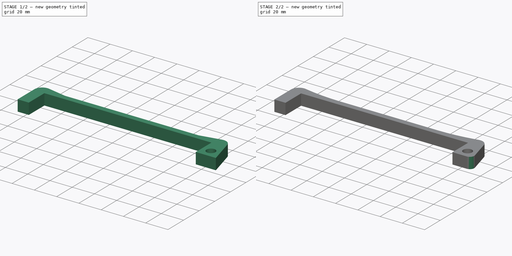
[diagram: build sequence overview — one tinted view per stage of 2, left to right]
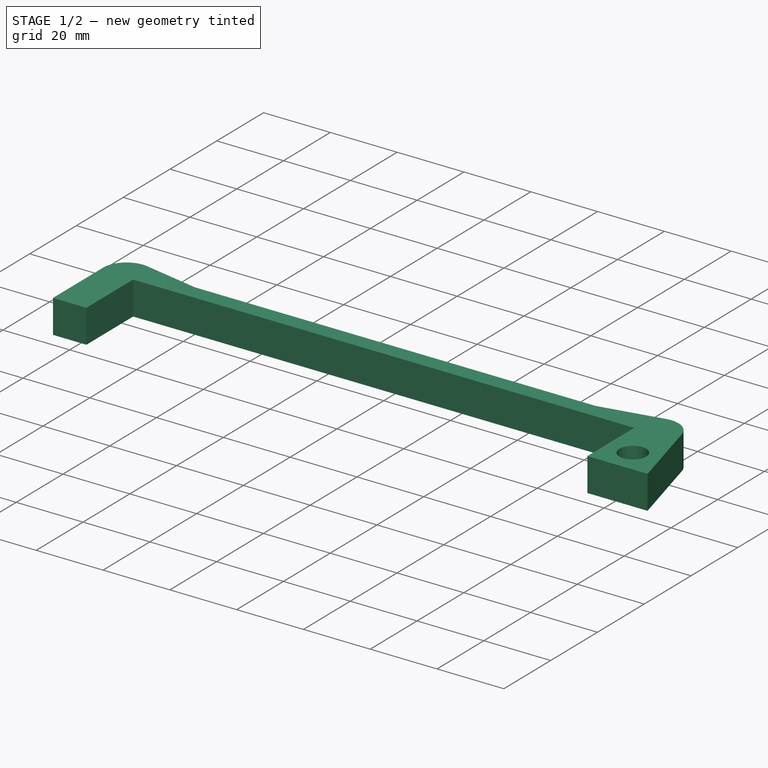
[diagram: stage 1 of 2 — iso view after this stage's code; geometry added in this stage tinted green]
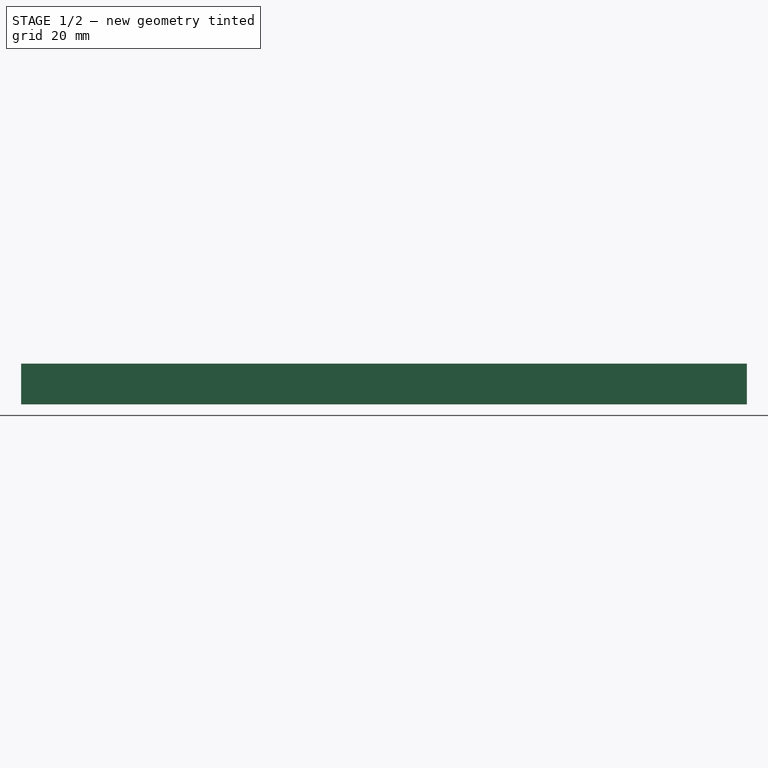
[diagram: stage 1 of 2 — front view after this stage's code; geometry added in this stage tinted green]
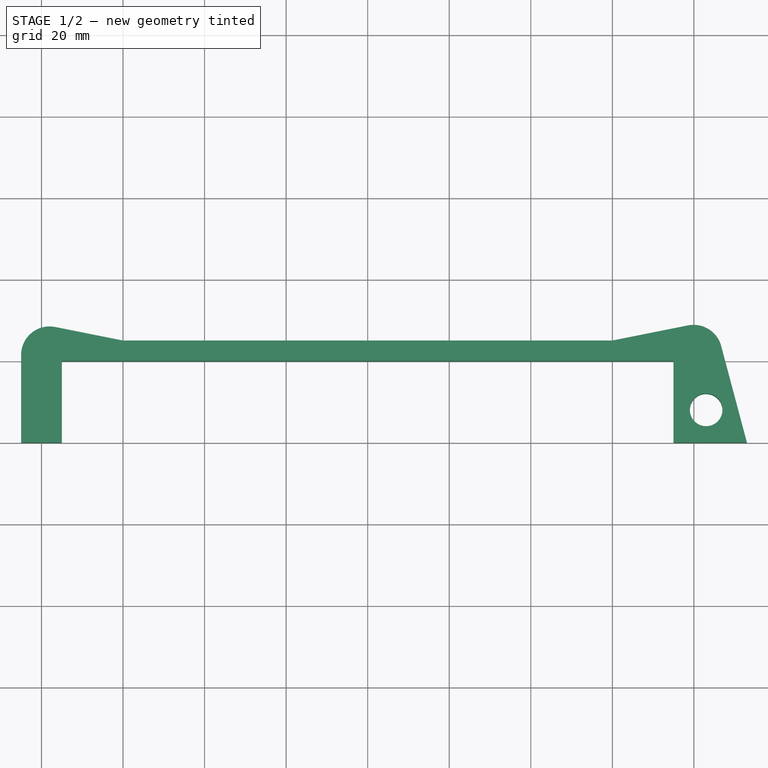
[diagram: stage 1 of 2 — top view after this stage's code; geometry added in this stage tinted green]
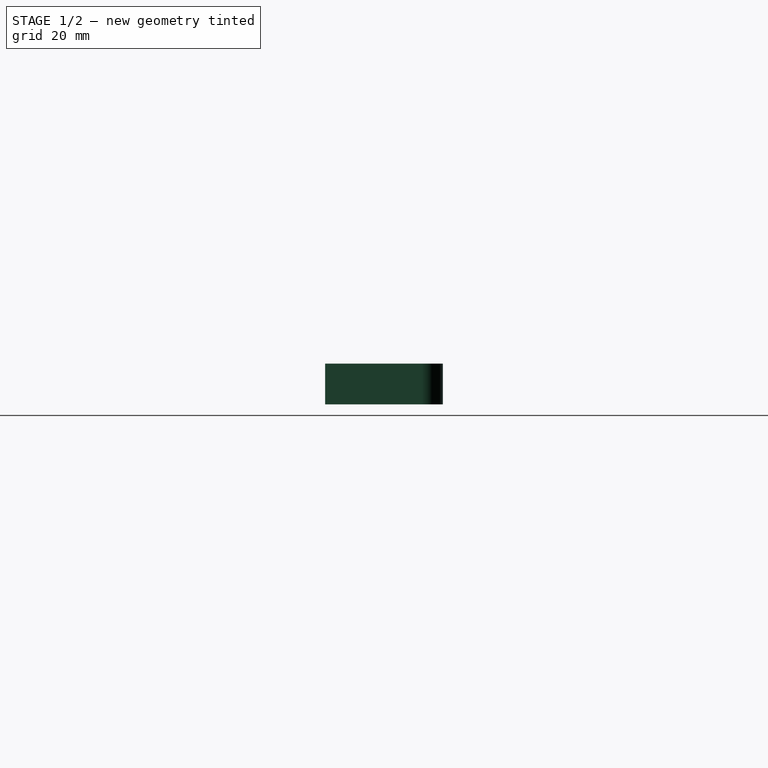
[diagram: stage 1 of 2 — right view after this stage's code; geometry added in this stage tinted green]
FCSTD DOCUMENT  (FreeCAD 0.19R24291 (Git))
Label: door opener wall bracket
License: All rights reserved
LicenseURL: http://en.wikipedia.org/wiki/All_rights_reserved
objects: PartDesign::Fillet×3, Sketcher::SketchObject×1, PartDesign::Pad×1, PartDesign::Body×1
note: 10 computed .brp shape members not serialized (recipe doc carries the construction recipe); baked Part::Feature solids carry a one-line shape summary decoded from their .brp

FEATURE [Sketcher::SketchObject] Sketch
  FullyConstrained = true
  MapMode = 5
  Support = -> [XY_Plane]
  sketch-geometry (11):
    g0: LineSegment StartX=-75 StartY=-20 StartZ=0 EndX=-75 EndY=0 EndZ=0
    g1: LineSegment StartX=-75 StartY=0 StartZ=0 EndX=75 EndY=0 EndZ=0
    g2: LineSegment StartX=75 StartY=0 StartZ=0 EndX=75 EndY=-20 EndZ=0
    g3: LineSegment StartX=75 StartY=-20 StartZ=0 EndX=93 EndY=-20 EndZ=0
    g4: LineSegment StartX=93 StartY=-20 StartZ=0 EndX=85 EndY=10 EndZ=0
    g5: LineSegment StartX=-85 StartY=10 StartZ=0 EndX=-85 EndY=-20 EndZ=0
    g6: LineSegment StartX=-85 StartY=-20 StartZ=0 EndX=-75 EndY=-20 EndZ=0
    g7: Circle CenterX=83 CenterY=-12 CenterZ=0 NormalX=0 NormalY=0 NormalZ=1 AngleXU=0 Radius=4
    g8: LineSegment StartX=-85 StartY=10 StartZ=0 EndX=-60 EndY=5 EndZ=0
    g9: LineSegment StartX=-60 StartY=5 StartZ=0 EndX=60 EndY=5 EndZ=0
    g10: LineSegment StartX=60 StartY=5 StartZ=0 EndX=85 EndY=10 EndZ=0
  constraints (31):
    c: PointOnObject(g0,g-1)
    c: Vertical(g0)
    c: Coincident(g0,g1)
    c: Coincident(g1,g2)
    c: Vertical(g2)
    c: Coincident(g2,g3)
    c: Horizontal(g3)
    c: Coincident(g3,g4)
    c: Vertical(g5)
    c: Coincident(g5,g6)
    c: Coincident(g6,g0)
    c: Horizontal(g6)
    c: Symmetric(g0,g1,g-1)
    c: DistanceX(g5,g0) = 10
    c: DistanceY(g0,g5) = 10
    c: DistanceY(g0,g0) = 20
    c: DistanceY(g2,g2) = 20
    c: DistanceX(g1,g1) = 150
    c: Diameter(g7) = 8
    c: DistanceY(g2,g7) = 8
    c: Coincident(g5,g8)
    c: Coincident(g8,g9)
    c: Coincident(g9,g10)
    c: Coincident(g10,g4)
    c: Symmetric(g8,g9,g-2)
    c: DistanceX(g9,g9) = 120
    c: DistanceY(g0,g8) = 5
    c: DistanceY(g1,g4) = 10
    c: DistanceX(g2,g7) = 8
    c: DistanceX(g3,g3) = 18
    c: DistanceX(g1,g4) = 10
FEATURE [PartDesign::Pad] Pad
  Direction = (1,1,1)
  Length = 10
  Length2 = 100
  Profile = -> Sketch
  Type = 0
FEATURE [PartDesign::Fillet] Fillet
  Base = -> Pad [Edge20,Edge1]
  BaseFeature = -> Pad
  Radius = 7
  SupportTransform = false
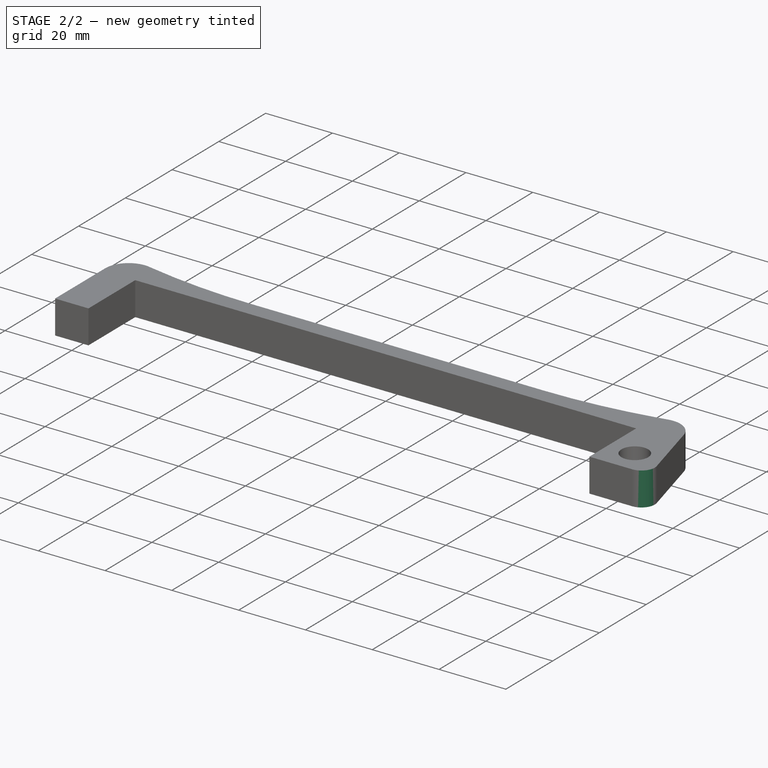
[diagram: stage 2 of 2 — iso view after this stage's code; geometry added in this stage tinted green]
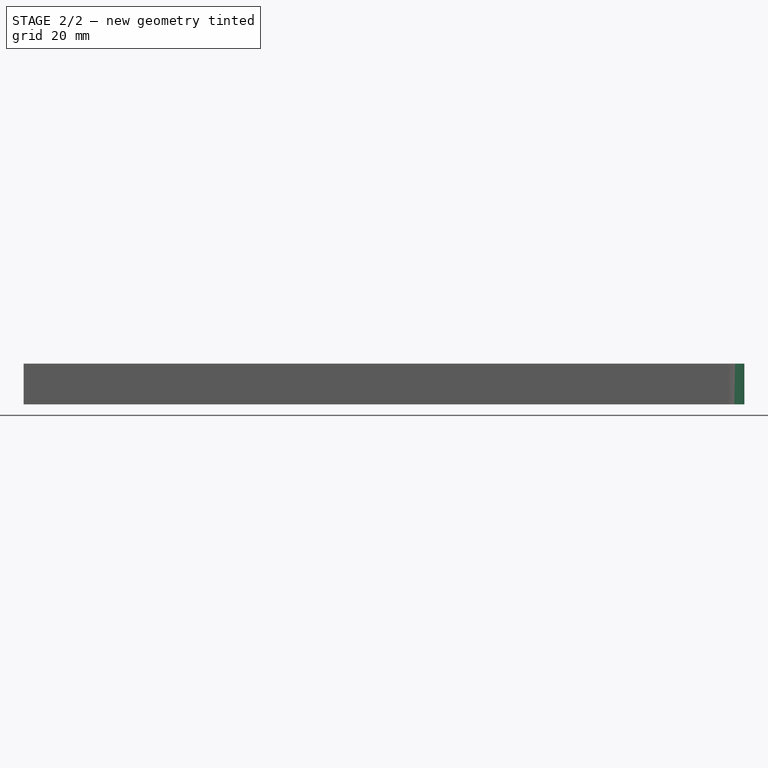
[diagram: stage 2 of 2 — front view after this stage's code; geometry added in this stage tinted green]
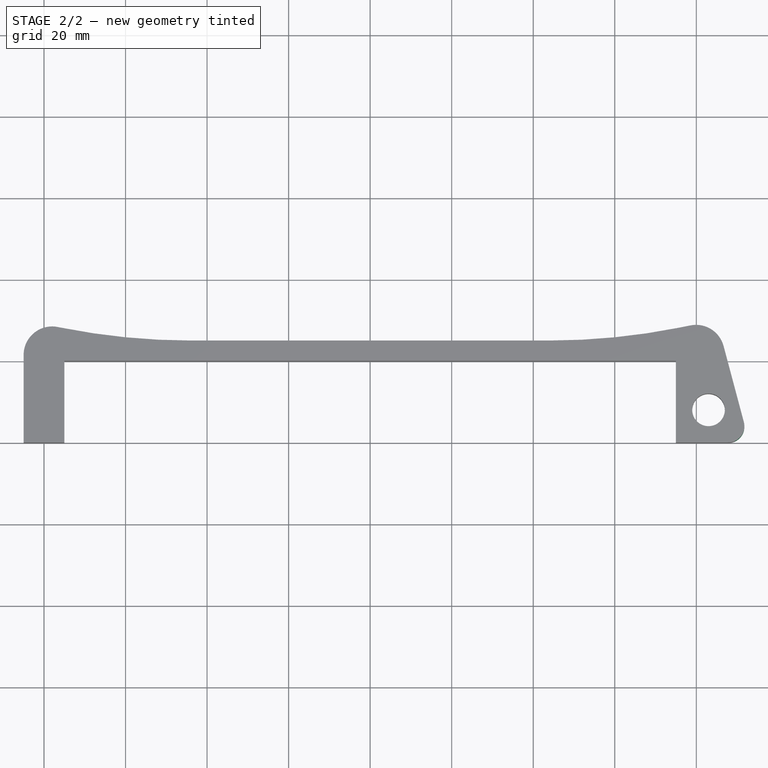
[diagram: stage 2 of 2 — top view after this stage's code; geometry added in this stage tinted green]
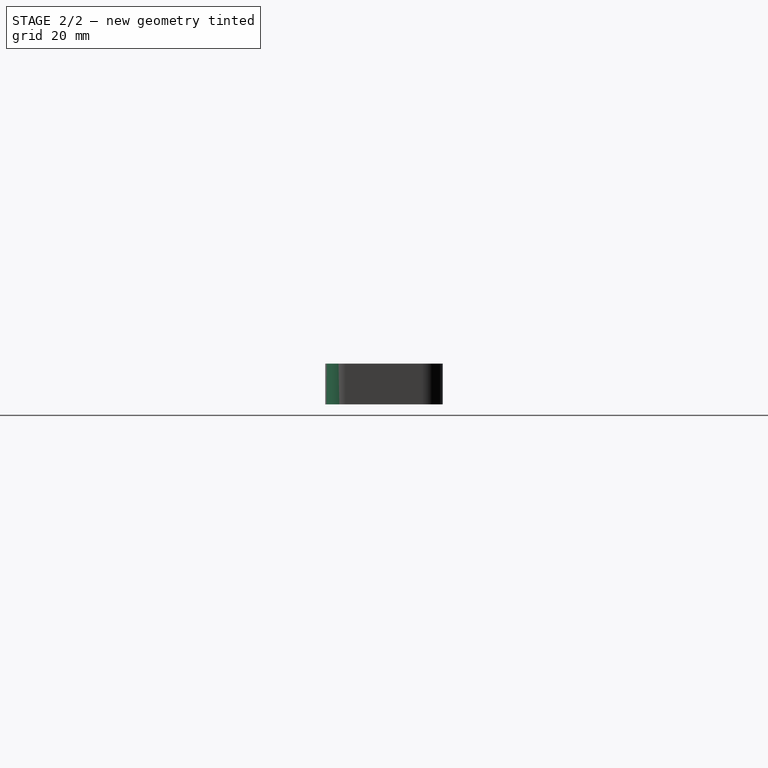
[diagram: stage 2 of 2 — right view after this stage's code; geometry added in this stage tinted green]
FEATURE [PartDesign::Fillet] Fillet001
  Base = -> Fillet [Edge31,Edge33]
  BaseFeature = -> Fillet
  Radius = 162
  SupportTransform = false
FEATURE [PartDesign::Fillet] Fillet002
  Base = -> Fillet001 [Edge39]
  BaseFeature = -> Fillet001
  Radius = 4
  SupportTransform = false
FEATURE [PartDesign::Body] Body
  Group = -> [Sketch,Pad,Fillet,Fillet001,Fillet002]
  Origin = -> Origin
  Tip = -> Fillet002
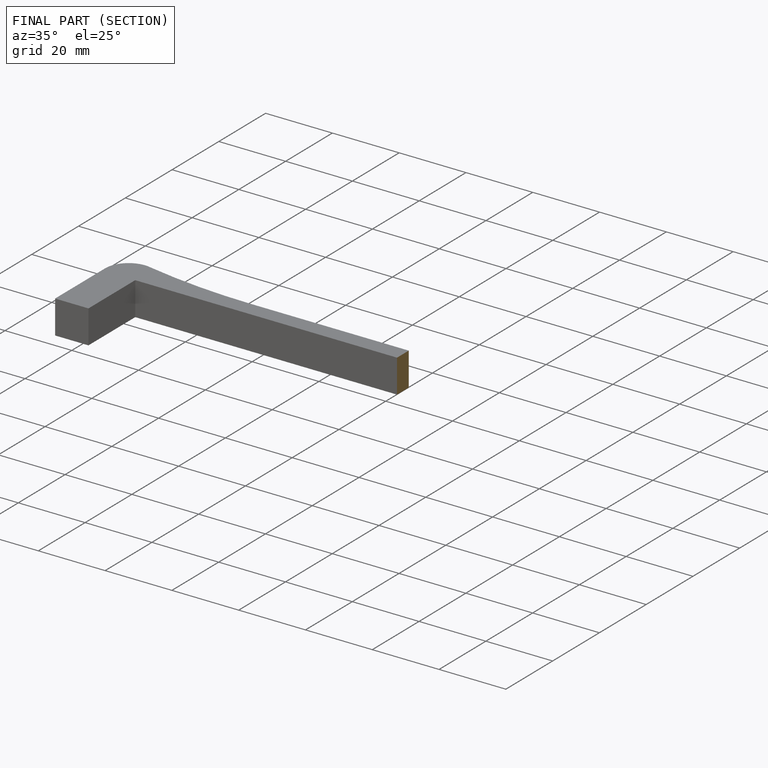
[diagram: finished part — half-section view (interior)]
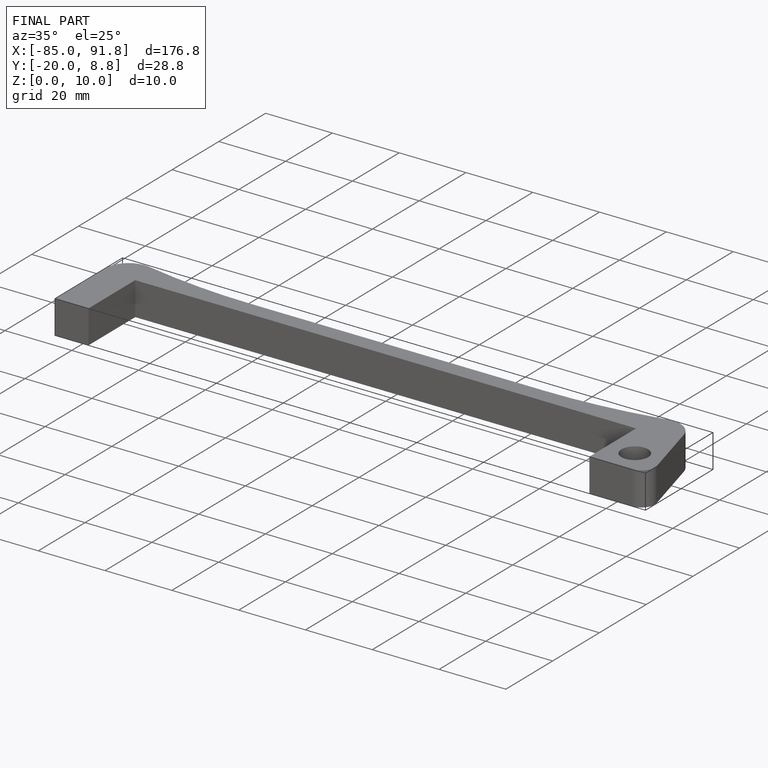
[diagram: finished part — iso view with bounding-box wireframe]
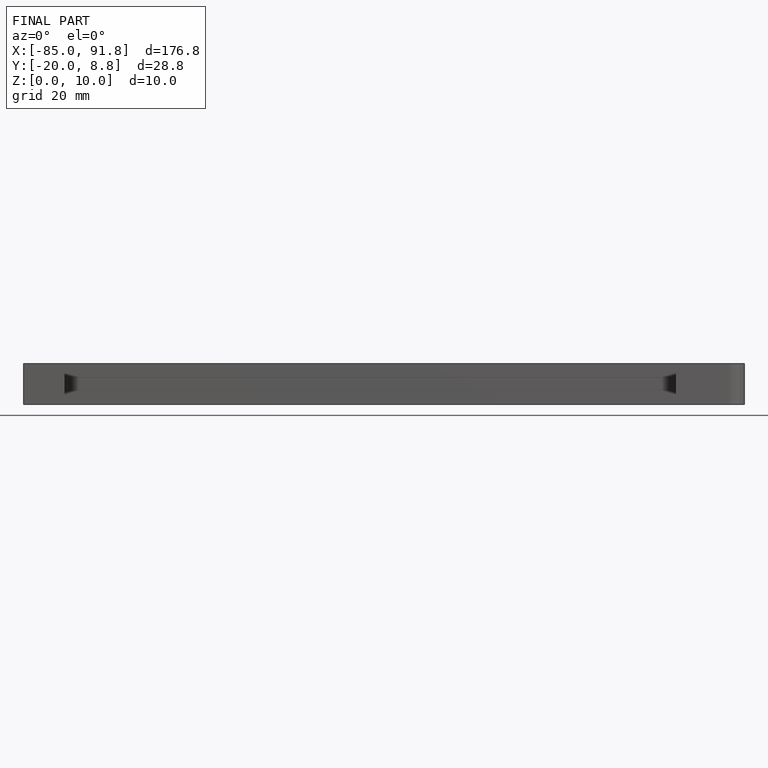
[diagram: finished part — front view with bounding-box wireframe]
